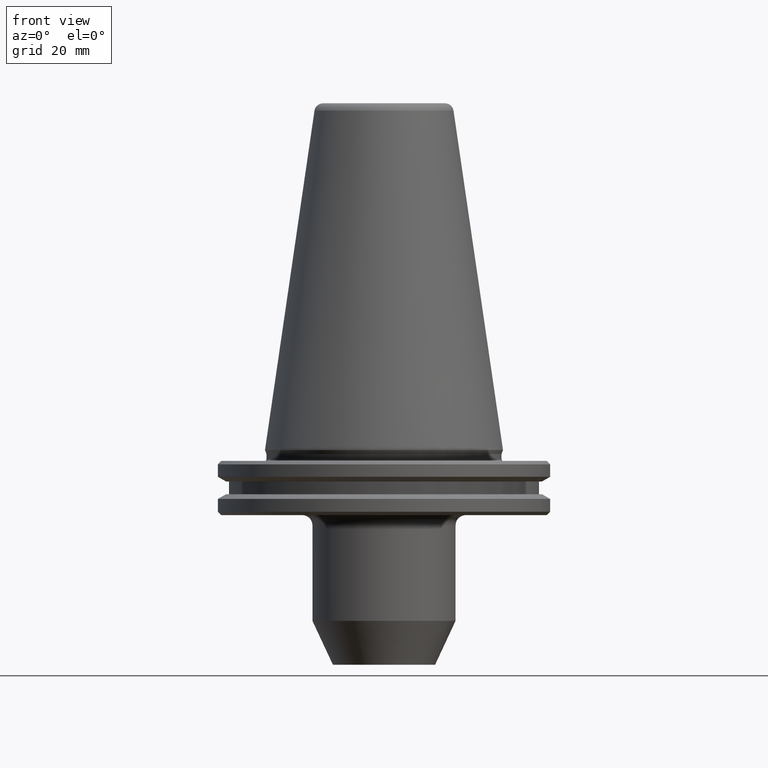
[diagram: clean part render]
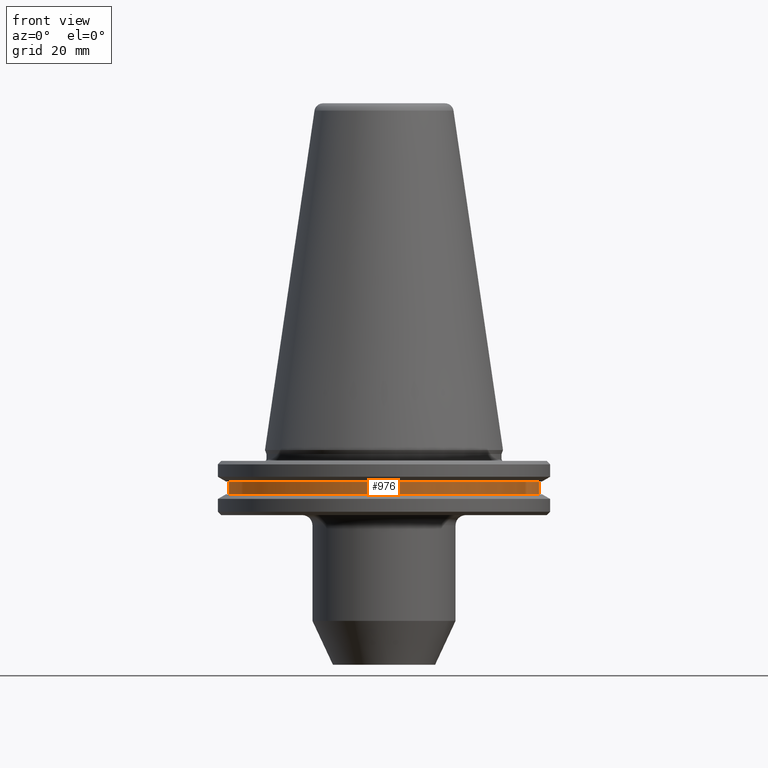
[diagram: same view with one face highlighted and labeled with its STEP entity id]
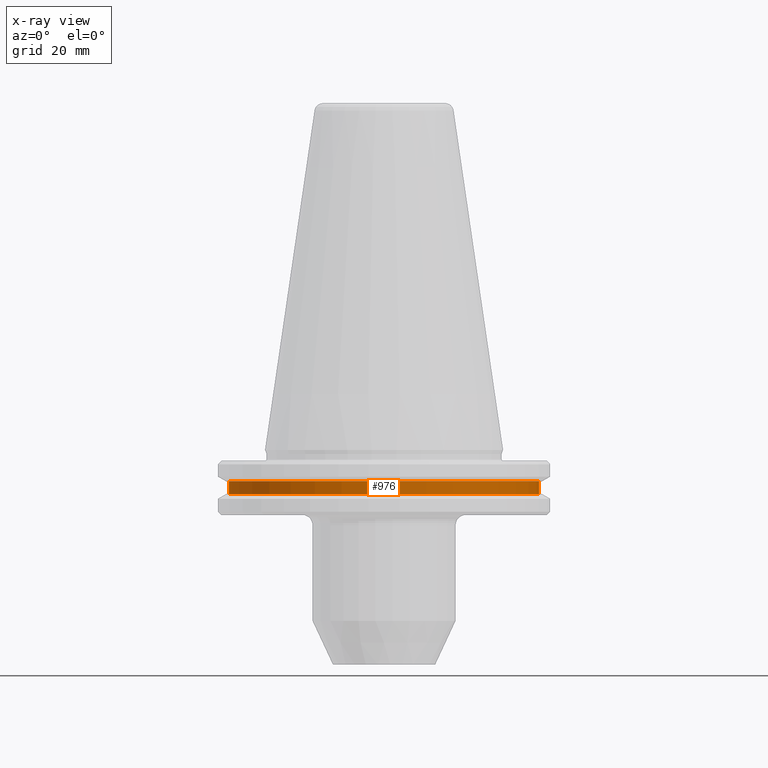
[diagram: x-ray of the same camera — body ghosted, the highlighted face saturated]
A machine part, front view. The second image highlights one B-rep face of the part: STEP entity #976.
The next image is the same camera in x-ray: the body ghosted, the highlighted face saturated — about 0% of this face is hidden behind the body in this view.
In plain terms, the highlighted cylindrical surface (partial cylindrical patch) has radius 45.5 mm, axis along (-0, -0, 1).
Its self-contained STEP definition (entity closure, byte-faithful):
#5 = CYLINDRICAL_SURFACE ( 'NONE', #813, 45.50000000000020600 ) ;
#20 = CARTESIAN_POINT ( 'NONE',  ( -45.50000000000020600, 5.572142936120482400E-015, -9.224999999999926800 ) ) ;
#62 = CARTESIAN_POINT ( 'NONE',  ( 0.0000000000000000000, 0.0000000000000000000, 101.7499999999999600 ) ) ;
#75 = CARTESIAN_POINT ( 'NONE',  ( 0.0000000000000000000, 0.0000000000000000000, -9.224999999999926800 ) ) ;
#96 = VERTEX_POINT ( 'NONE', #510 ) ;
#101 = CARTESIAN_POINT ( 'NONE',  ( 45.50000000000020600, 0.0000000000000000000, -9.224999999999926800 ) ) ;
#153 = LINE ( 'NONE', #481, #744 ) ;
#185 = VERTEX_POINT ( 'NONE', #381 ) ;
#188 = DIRECTION ( 'NONE',  ( 1.000000000000000000, 0.0000000000000000000, 0.0000000000000000000 ) ) ;
#191 = ORIENTED_EDGE ( 'NONE', *, *, #577, .T. ) ;
#224 = EDGE_LOOP ( 'NONE', ( #427, #690, #191, #668 ) ) ;
#265 = EDGE_CURVE ( 'NONE', #847, #468, #472, .T. ) ;
#269 = CARTESIAN_POINT ( 'NONE',  ( 0.0000000000000000000, 0.0000000000000000000, -12.97500000000006900 ) ) ;
#297 = EDGE_CURVE ( 'NONE', #96, #185, #980, .T. ) ;
#381 = CARTESIAN_POINT ( 'NONE',  ( 45.50000000000020600, 0.0000000000000000000, -12.97500000000006900 ) ) ;
#385 = CARTESIAN_POINT ( 'NONE',  ( 45.50000000000020600, 0.0000000000000000000, 101.7499999999999600 ) ) ;
#395 = DIRECTION ( 'NONE',  ( -0.0000000000000000000, -0.0000000000000000000, 1.000000000000000000 ) ) ;
#416 = VECTOR ( 'NONE', #769, 1000.000000000000000 ) ;
#427 = ORIENTED_EDGE ( 'NONE', *, *, #816, .F. ) ;
#446 = DIRECTION ( 'NONE',  ( -0.0000000000000000000, -0.0000000000000000000, 1.000000000000000000 ) ) ;
#468 = VERTEX_POINT ( 'NONE', #101 ) ;
#472 = CIRCLE ( 'NONE', #723, 45.50000000000020600 ) ;
#481 = CARTESIAN_POINT ( 'NONE',  ( -45.50000000000020600, 5.572142936120482400E-015, 101.7499999999999600 ) ) ;
#510 = CARTESIAN_POINT ( 'NONE',  ( -45.50000000000020600, 5.572142936120482400E-015, -12.97500000000006900 ) ) ;
#577 = EDGE_CURVE ( 'NONE', #185, #468, #620, .T. ) ;
#620 = LINE ( 'NONE', #385, #416 ) ;
#623 = FACE_OUTER_BOUND ( 'NONE', #224, .T. ) ;
#652 = DIRECTION ( 'NONE',  ( 1.000000000000000000, 0.0000000000000000000, 0.0000000000000000000 ) ) ;
#668 = ORIENTED_EDGE ( 'NONE', *, *, #265, .F. ) ;
#690 = ORIENTED_EDGE ( 'NONE', *, *, #297, .T. ) ;
#723 = AXIS2_PLACEMENT_3D ( 'NONE', #75, #911, #652 ) ;
#737 = DIRECTION ( 'NONE',  ( -0.0000000000000000000, -0.0000000000000000000, 1.000000000000000000 ) ) ;
#744 = VECTOR ( 'NONE', #395, 1000.000000000000000 ) ;
#764 = DIRECTION ( 'NONE',  ( 1.000000000000000000, 0.0000000000000000000, 0.0000000000000000000 ) ) ;
#769 = DIRECTION ( 'NONE',  ( -0.0000000000000000000, -0.0000000000000000000, 1.000000000000000000 ) ) ;
#813 = AXIS2_PLACEMENT_3D ( 'NONE', #62, #446, #764 ) ;
#816 = EDGE_CURVE ( 'NONE', #96, #847, #153, .T. ) ;
#847 = VERTEX_POINT ( 'NONE', #20 ) ;
#911 = DIRECTION ( 'NONE',  ( -0.0000000000000000000, -0.0000000000000000000, 1.000000000000000000 ) ) ;
#930 = AXIS2_PLACEMENT_3D ( 'NONE', #269, #737, #188 ) ;
#976 = ADVANCED_FACE ( 'NONE', ( #623 ), #5, .T. ) ;
#980 = CIRCLE ( 'NONE', #930, 45.50000000000020600 ) ;